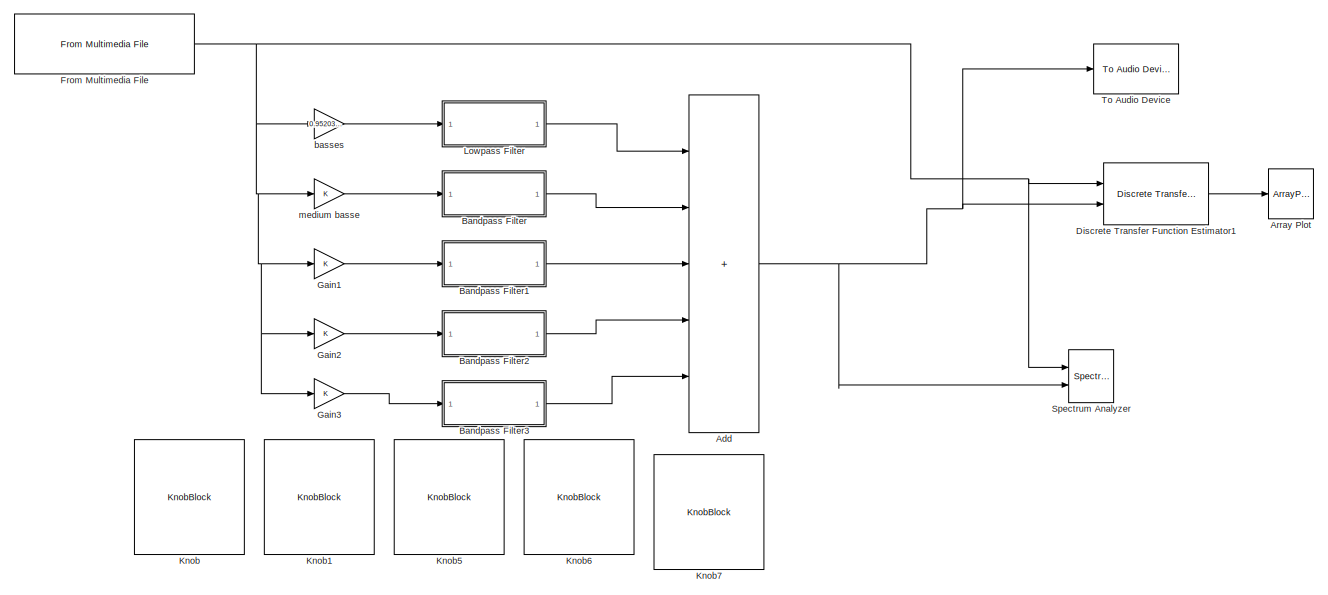
[diagram: root canvas - part 1/2, most of the canvas]
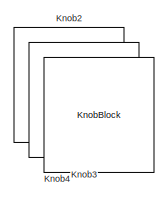
[diagram: root canvas - part 2/2, middle right region]
MODEL slx_b1d47673da93
KIND model
CONFIG AbsTol = auto
CONFIG EnableMultiTasking = off
CONFIG FixedStep = auto
CONFIG MaxStep = auto
CONFIG MinStep = auto
CONFIG RelTol = 1e-3
CONFIG SampleTimeConstraint = Unconstrained
CONFIG Solver = VariableStepAuto
CONFIG SolverName = VariableStepAuto
CONFIG StartTime = 0.0
CONFIG StopTime = 100.0
BLOCK [Sum] Add
  IconShape = rectangular
  Inputs = +++++
  Ports = [5, 1]
BLOCK [ArrayPlot] Array Plot
  Ports = [1]
  ScopeSpecificationString = dsp.scopes.ArrayPlotBlockSpecification('CurrentConfiguration', extmgr.ConfigurationSet(extmgr.Configuration('Core','General UI',true),extmgr.Configuration('Core','Source UI',true),extmgr.Configuration('Sources','WiredSimulink',true),extmgr.Configuration('Sources','SimulinkEvent',false),extmgr.Configuration('Sources','Simulink',false),extmgr.Configuration('Sources','SPTool',false),extmgr.Configurat...<+3070ch>
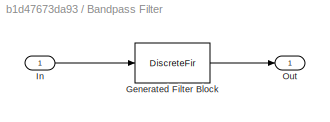
BLOCK [SubSystem] Bandpass Filter
  CopyFcn = fdesignblkfcn(gcbh, {'CopyFcn'});
  DialogController = fdesignblkfcn
  InitFcn = fdesignblkfcn(gcbh, {'InitFcn'});
  Ports = [1, 1]
  RequestExecContextInheritance = off
  UserDataPersistent = on
BLOCK [DiscreteFir] Bandpass Filter/Generated Filter Block
  Coefficients = [0.0203951895353563437 0.0105270395880383734 0.00102609416191840616 -0.00105638581872127693 0.0103630090032638365 0.019415288736150612 0.00983620951138712736 -0.00777295666343813963 -0.00799308481954388687 0.00992847112640252161 0.0156072059452413477 -0.00813260066507140444 -0.0338743714257357525 -0.0259768787159957264 0.00154804325119133881 -0.00212638512934792707 -0.0472890105468602717 -0.076238...<+758ch>
  InputPortMap = u0
  InputProcessing = Columns as channels (frame based)
  OutputPortMap = o0
  Ports = [1, 1]
  Tag = BlockMethodSubSystem
BLOCK [Inport] Bandpass Filter/In
BLOCK [Outport] Bandpass Filter/Out
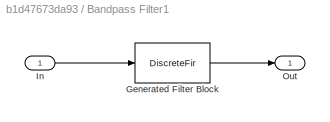
BLOCK [SubSystem] Bandpass Filter1
  CopyFcn = fdesignblkfcn(gcbh, {'CopyFcn'});
  DialogController = fdesignblkfcn
  InitFcn = fdesignblkfcn(gcbh, {'InitFcn'});
  Ports = [1, 1]
  RequestExecContextInheritance = off
  UserDataPersistent = on
BLOCK [DiscreteFir] Bandpass Filter1/Generated Filter Block
  Coefficients = [0.00135877272117858848 0.00509218721067843973 -0.00107535442758440879 0.000709082871088827249 0.000222922703759563474 -0.00846638313535847536 -0.00454201081853635846 0.0137730039030066424 0.0095749613740041227 -0.00837718850712794449 -0.00338280231013474977 -0.00341278122921825043 -0.0196864163133547675 0.00632288751786394716 0.0433596688516629664 0.00486449262220048015 -0.0375113620465250541 -0....<+774ch>
  InputPortMap = u0
  InputProcessing = Columns as channels (frame based)
  OutputPortMap = o0
  Ports = [1, 1]
  Tag = BlockMethodSubSystem
BLOCK [Inport] Bandpass Filter1/In
BLOCK [Outport] Bandpass Filter1/Out
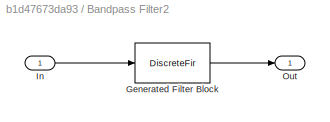
BLOCK [SubSystem] Bandpass Filter2
  CopyFcn = fdesignblkfcn(gcbh, {'CopyFcn'});
  DialogController = fdesignblkfcn
  InitFcn = fdesignblkfcn(gcbh, {'InitFcn'});
  Ports = [1, 1]
  RequestExecContextInheritance = off
  UserDataPersistent = on
BLOCK [DiscreteFir] Bandpass Filter2/Generated Filter Block
  Coefficients = [0.00099985025894186539 -0.00689822537468701927 0.00679631455291792447 -0.00532269753112438702 0.00203354292113842698 -0.00177505112775096295 0.00740645273183580203 -0.0163789916372325157 0.021590209858332321 -0.017819304154848066 0.00813318651443768574 -0.00316427909481966415 0.0118405613274002695 -0.0311071986721033616 0.0455113754877628229 -0.0398870549286385601 0.0156089237811597378 0.00559365...<+758ch>
  InputPortMap = u0
  InputProcessing = Columns as channels (frame based)
  OutputPortMap = o0
  Ports = [1, 1]
  Tag = BlockMethodSubSystem
BLOCK [Inport] Bandpass Filter2/In
BLOCK [Outport] Bandpass Filter2/Out
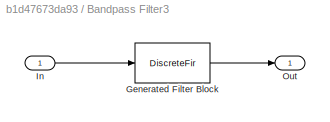
BLOCK [SubSystem] Bandpass Filter3
  CopyFcn = fdesignblkfcn(gcbh, {'CopyFcn'});
  DialogController = fdesignblkfcn
  InitFcn = fdesignblkfcn(gcbh, {'InitFcn'});
  Ports = [1, 1]
  RequestExecContextInheritance = off
  UserDataPersistent = on
BLOCK [DiscreteFir] Bandpass Filter3/Generated Filter Block
  Coefficients = [-0.00375672239269892903 0.00391580605713855862 0.00181116792460870538 0.00103291782042095183 -0.00162250139777729736 -0.00494051707968386992 0.0133720527368652049 -0.00334940143374779647 -0.0128223380434725164 0.0108460428469768361 0.000355528521909860844 0.00710741211822148514 -0.0146546247891593644 -0.0126887099016466387 0.0437597799111126423 -0.020936068437688915 -0.024343302492758543 0.019229...<+760ch>
  InputPortMap = u0
  InputProcessing = Columns as channels (frame based)
  OutputPortMap = o0
  Ports = [1, 1]
  Tag = BlockMethodSubSystem
BLOCK [Inport] Bandpass Filter3/In
BLOCK [Outport] Bandpass Filter3/Out
BLOCK [Reference] Discrete Transfer Function Estimator1  REF=dspspect3/Discrete
Transfer Function
Estimator
  Ports = [2, 1]
  SourceBlock = dspspect3/Discrete\nTransfer Function\nEstimator
  SourceProductBaseCode = DS
  SourceType = Discrete Transfer Function Estimator
BLOCK [Reference] From Multimedia File  REF=dspvision/From Multimedia File
  Ports = [0, 1]
  SourceBlock = dspvision/From Multimedia File
  SourceProductBaseCode = DS,HW,VP
  SourceType = From Multimedia File
BLOCK [Gain] Gain1
BLOCK [Gain] Gain2
BLOCK [Gain] Gain3
BLOCK [KnobBlock] Knob
  ScaleMax = 1
BLOCK [KnobBlock] Knob1
  ScaleMax = 1
BLOCK [KnobBlock] Knob2
BLOCK [KnobBlock] Knob3
BLOCK [KnobBlock] Knob4
BLOCK [KnobBlock] Knob5
  ScaleMax = 1
BLOCK [KnobBlock] Knob6
  ScaleMax = 1
BLOCK [KnobBlock] Knob7
  ScaleMax = 1
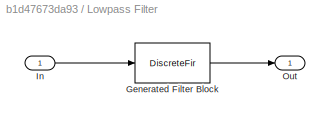
BLOCK [SubSystem] Lowpass Filter
  CopyFcn = fdesignblkfcn(gcbh, {'CopyFcn'});
  DialogController = fdesignblkfcn
  InitFcn = fdesignblkfcn(gcbh, {'InitFcn'});
  Ports = [1, 1]
  RequestExecContextInheritance = off
  UserDataPersistent = on
BLOCK [DiscreteFir] Lowpass Filter/Generated Filter Block
  Coefficients = [0.0740309425242378499 0.124494427598271798 -0.093660668811036546 0.00353679654821630876 -0.0378371530414057661 -0.0188276332392776184 -0.0262748234084314511 -0.0215713453365450232 -0.0214622703311879263 -0.0183611187364709147 -0.0152012772330087659 -0.0105485338068202171 -0.00502574439809432092 0.00162565823437747542 0.00915466087540308705 0.0174276643141721595 0.0263462007241276955 0.03553355788...<+745ch>
  InputPortMap = u0
  InputProcessing = Columns as channels (frame based)
  OutputPortMap = o0
  Ports = [1, 1]
  Tag = BlockMethodSubSystem
BLOCK [Inport] Lowpass Filter/In
BLOCK [Outport] Lowpass Filter/Out
BLOCK [SpectrumAnalyzer] Spectrum Analyzer
  NumInputPorts = 2
  Ports = [2]
  ScopeSpecificationString = spbscopes.SpectrumAnalyzerBlockCfg('CurrentConfiguration', extmgr.ConfigurationSet(extmgr.Configuration('Core','General UI',true),extmgr.Configuration('Core','Source UI',true),extmgr.Configuration('Sources','WiredSimulink',true),extmgr.Configuration('Sources','Simulink',false),extmgr.Configuration('Sources','SimulinkEvent',false),extmgr.Configuration('Sources','File',false),extmgr.Configuration('S...<+2962ch>
BLOCK [Reference] To Audio Device  REF=dspobslib/To Audio
Device
  Ports = [1]
  SourceBlock = dspobslib/To Audio\nDevice
  SourceProductBaseCode = DS
  SourceType = To Audio Device
BLOCK [Gain] basses
  Gain = 0.9520340983072917
BLOCK [Gain] medium basse
NET Add:1 -> Discrete Transfer Function Estimator1:2, Spectrum Analyzer:2, To Audio Device:1
LINE Bandpass Filter1:1 -> Add:3
LINE Bandpass Filter2:1 -> Add:4
LINE Bandpass Filter3:1 -> Add:5
LINE Bandpass Filter:1 -> Add:2
LINE Discrete Transfer Function Estimator1:1 -> Array Plot:1
NET From Multimedia File:1 -> Discrete Transfer Function Estimator1:1, Gain1:1, Gain2:1, Gain3:1, Spectrum Analyzer:1, basses:1, medium basse:1
LINE Gain1:1 -> Bandpass Filter1:1
LINE Gain2:1 -> Bandpass Filter2:1
LINE Gain3:1 -> Bandpass Filter3:1
LINE Lowpass Filter:1 -> Add:1
LINE basses:1 -> Lowpass Filter:1
LINE medium basse:1 -> Bandpass Filter:1
note: NET lines group one-source signal fan-out (src -> all destinations, sorted); 1:1 wires keep LINE
